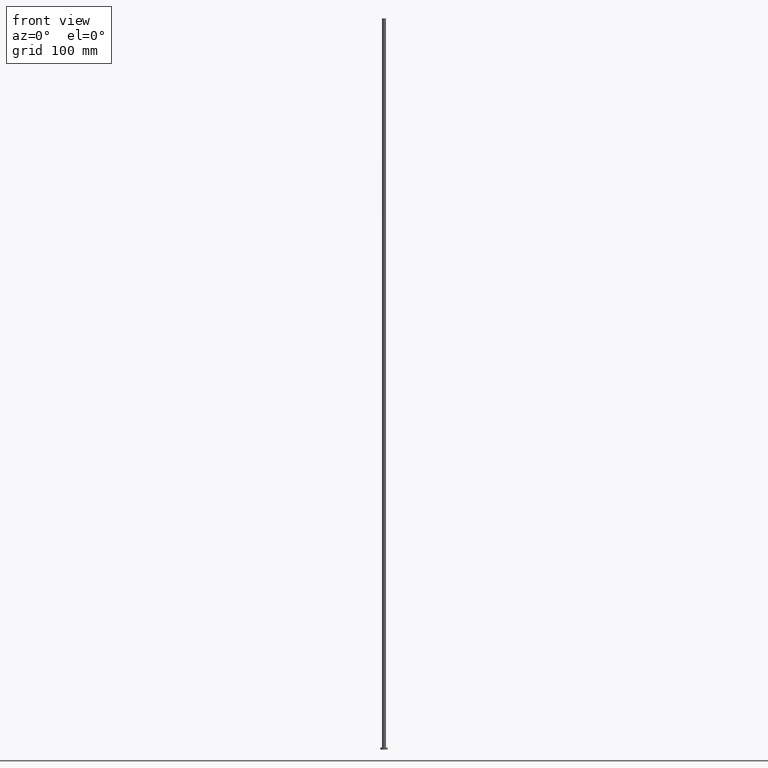
[diagram: clean part render]
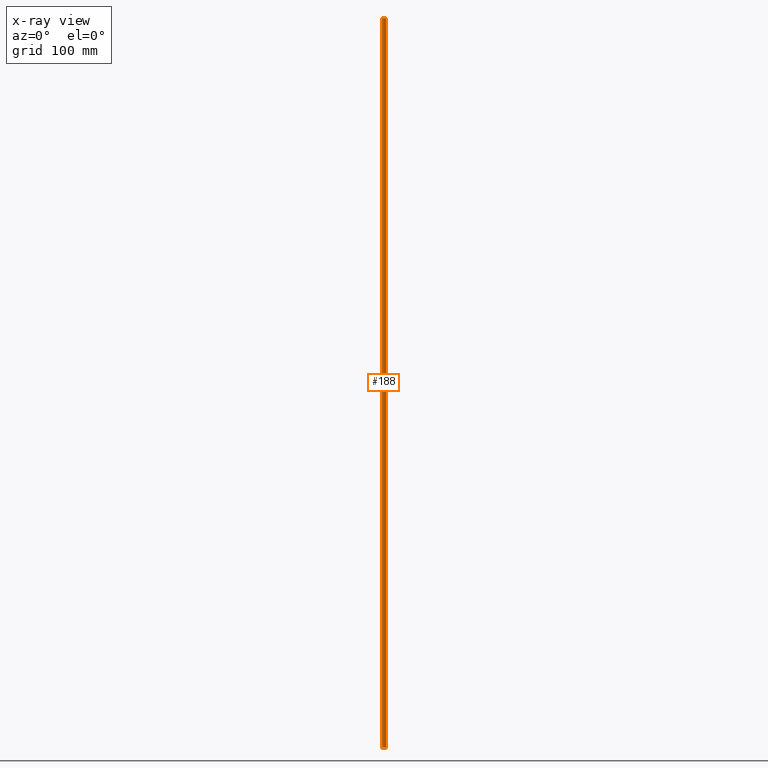
[diagram: x-ray — body ghosted, one internal face saturated and labeled with its STEP entity id]
A machine part, front view, then the same camera in x-ray: the body is ghosted and one INTERNAL B-rep face — a face not visible from any outside direction — is saturated and labeled: STEP entity #188.
In plain terms, the highlighted cylindrical surface (edge-blend (fillet) strip) has radius 2.75 mm, axis along (-0, -0, -1).
Its self-contained STEP definition (entity closure, byte-faithful):
#3 = ORIENTED_EDGE ( 'NONE', *, *, #4, .T. ) ;
#4 = EDGE_CURVE ( 'NONE', #95, #244, #157, .T. ) ;
#5 = AXIS2_PLACEMENT_3D ( 'NONE', #247, #135, #111 ) ;
#10 = DIRECTION ( 'NONE',  ( -0.000000000000000000, -0.000000000000000000, -1.000000000000000000 ) ) ;
#14 = CARTESIAN_POINT ( 'NONE',  ( -2.750000000000000000, 0.000000000000000000, 3.000000000000000000 ) ) ;
#15 = CARTESIAN_POINT ( 'NONE',  ( -2.750000000000000000, 0.000000000000000000, 1000.000000000000000 ) ) ;
#23 = EDGE_CURVE ( 'NONE', #244, #213, #85, .T. ) ;
#25 = AXIS2_PLACEMENT_3D ( 'NONE', #215, #10, #192 ) ;
#56 = VERTEX_POINT ( 'NONE', #15 ) ;
#58 = DIRECTION ( 'NONE',  ( -0.000000000000000000, -0.000000000000000000, -1.000000000000000000 ) ) ;
#75 = DIRECTION ( 'NONE',  ( -0.000000000000000000, -0.000000000000000000, -1.000000000000000000 ) ) ;
#80 = ORIENTED_EDGE ( 'NONE', *, *, #209, .F. ) ;
#85 = CIRCLE ( 'NONE', #185, 2.750000000000000000 ) ;
#92 = CARTESIAN_POINT ( 'NONE',  ( -2.750000000000000000, 0.000000000000000000, 1000.000000000000000 ) ) ;
#95 = VERTEX_POINT ( 'NONE', #169 ) ;
#102 = EDGE_LOOP ( 'NONE', ( #129, #3, #194, #80 ) ) ;
#109 = VECTOR ( 'NONE', #75, 1000.000000000000000 ) ;
#111 = DIRECTION ( 'NONE',  ( 1.000000000000000000, 0.000000000000000000, 0.000000000000000000 ) ) ;
#117 = FACE_OUTER_BOUND ( 'NONE', #102, .T. ) ;
#122 = DIRECTION ( 'NONE',  ( 0.000000000000000000, 0.000000000000000000, 1.000000000000000000 ) ) ;
#124 = EDGE_CURVE ( 'NONE', #95, #56, #125, .T. ) ;
#125 = CIRCLE ( 'NONE', #5, 2.750000000000000000 ) ;
#129 = ORIENTED_EDGE ( 'NONE', *, *, #124, .F. ) ;
#135 = DIRECTION ( 'NONE',  ( 0.000000000000000000, 0.000000000000000000, 1.000000000000000000 ) ) ;
#137 = DIRECTION ( 'NONE',  ( 1.000000000000000000, 0.000000000000000000, 0.000000000000000000 ) ) ;
#148 = CARTESIAN_POINT ( 'NONE',  ( 2.750000000000000000, 3.367778697655221012E-16, 3.000000000000000000 ) ) ;
#157 = LINE ( 'NONE', #220, #206 ) ;
#169 = CARTESIAN_POINT ( 'NONE',  ( 2.750000000000000000, 3.367778697655221012E-16, 1000.000000000000000 ) ) ;
#185 = AXIS2_PLACEMENT_3D ( 'NONE', #218, #122, #137 ) ;
#188 = ADVANCED_FACE ( 'NONE', ( #117 ), #212, .T. ) ;
#192 = DIRECTION ( 'NONE',  ( -1.000000000000000000, 0.000000000000000000, 0.000000000000000000 ) ) ;
#194 = ORIENTED_EDGE ( 'NONE', *, *, #23, .T. ) ;
#197 = LINE ( 'NONE', #92, #109 ) ;
#206 = VECTOR ( 'NONE', #58, 1000.000000000000000 ) ;
#209 = EDGE_CURVE ( 'NONE', #56, #213, #197, .T. ) ;
#212 = CYLINDRICAL_SURFACE ( 'NONE', #25, 2.750000000000000000 ) ;
#213 = VERTEX_POINT ( 'NONE', #14 ) ;
#215 = CARTESIAN_POINT ( 'NONE',  ( 0.000000000000000000, 0.000000000000000000, 1000.000000000000000 ) ) ;
#218 = CARTESIAN_POINT ( 'NONE',  ( 0.000000000000000000, 0.000000000000000000, 3.000000000000000000 ) ) ;
#220 = CARTESIAN_POINT ( 'NONE',  ( 2.750000000000000000, 3.367778697655221012E-16, 1000.000000000000000 ) ) ;
#244 = VERTEX_POINT ( 'NONE', #148 ) ;
#247 = CARTESIAN_POINT ( 'NONE',  ( 0.000000000000000000, 0.000000000000000000, 1000.000000000000000 ) ) ;